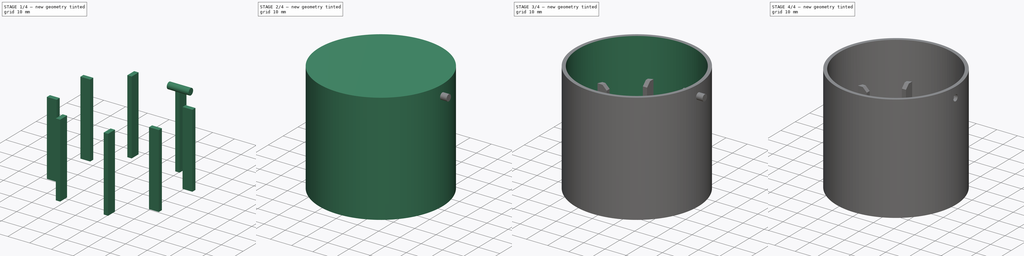
[diagram: build sequence overview — one tinted view per stage of 4, left to right]
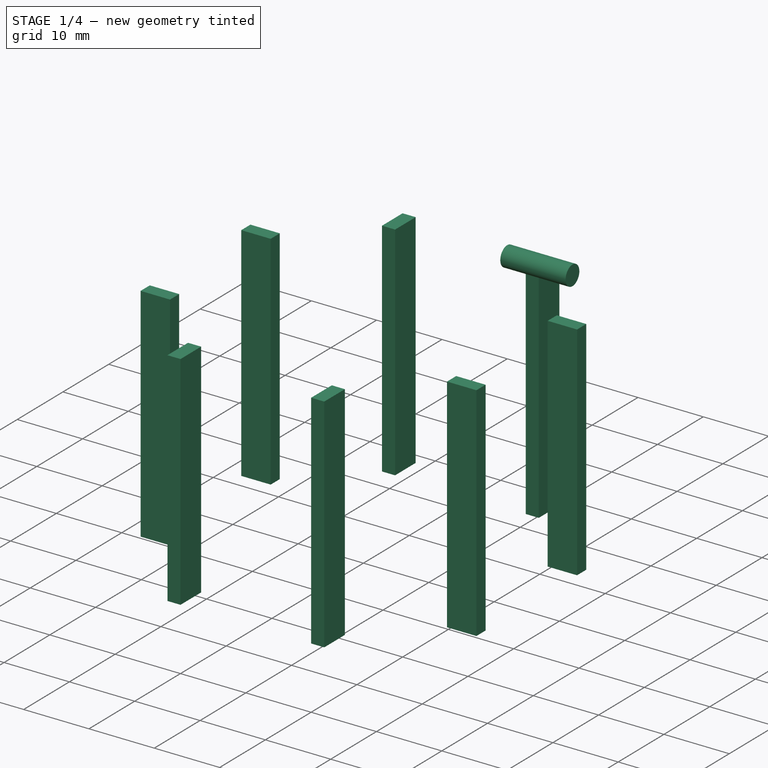
[diagram: stage 1 of 4 — iso view after this stage's code; geometry added in this stage tinted green]
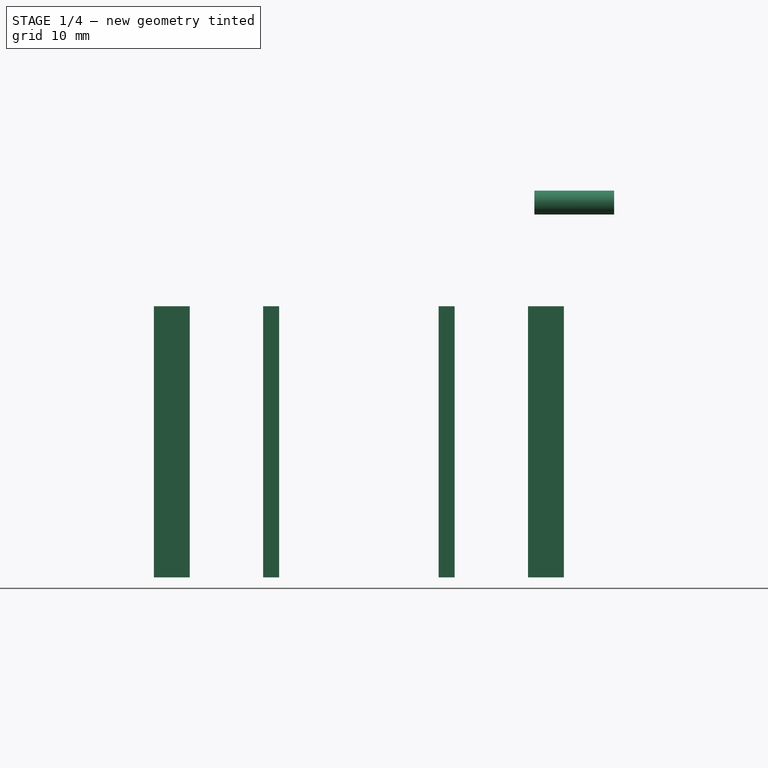
[diagram: stage 1 of 4 — front view after this stage's code; geometry added in this stage tinted green]
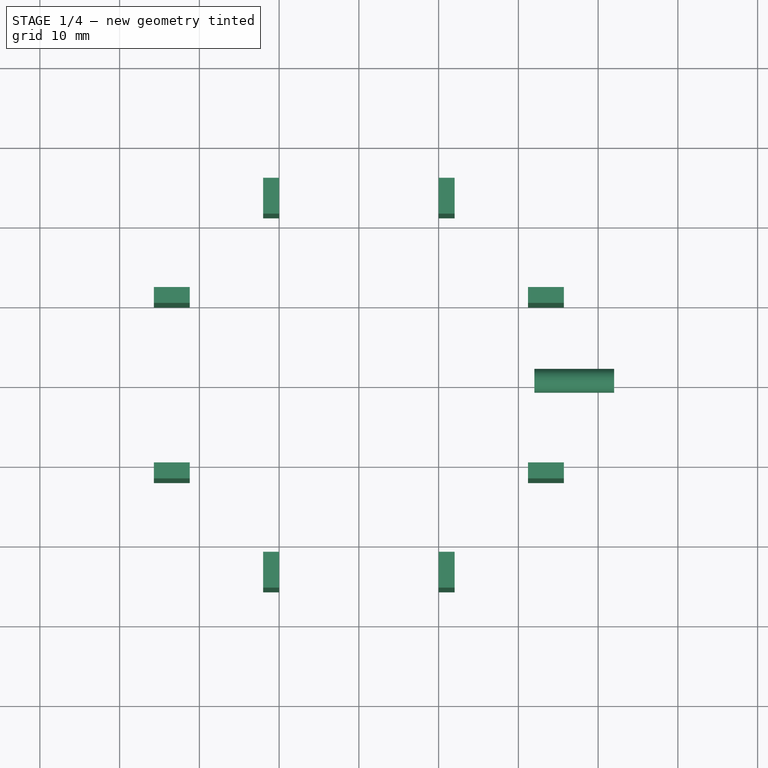
[diagram: stage 1 of 4 — top view after this stage's code; geometry added in this stage tinted green]
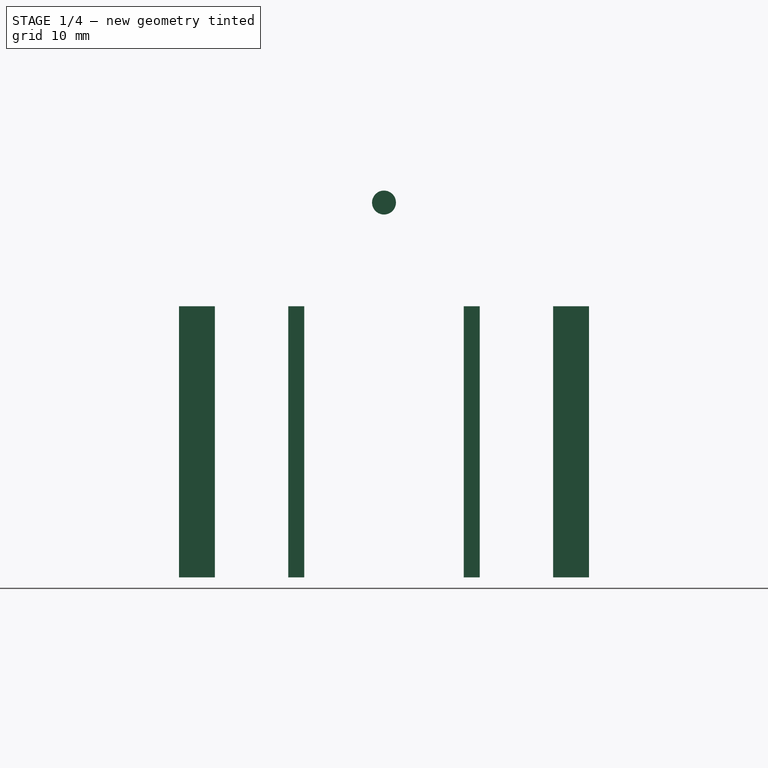
[diagram: stage 1 of 4 — right view after this stage's code; geometry added in this stage tinted green]
FCSTD DOCUMENT  (FreeCAD 0.15R4671 (Git))
Label: azimuth_enclosure
License: CreativeCommons Attribution-ShareAlike
LicenseURL: http://creativecommons.org/licenses/by-sa/4.0/
objects: Sketcher::SketchObject×3, Part::Cylinder×2, PartDesign::Pocket×2, PartDesign::Chamfer×2, PartDesign::Pad×1, Part::MultiFuse×1, Part::Cut×1
note: 15 computed .brp shape members not serialized (recipe doc carries the construction recipe); baked Part::Feature solids carry a one-line shape summary decoded from their .brp

FEATURE [Sketcher::SketchObject] Sketch002
  sketch-geometry (36):
    g0: LineSegment StartX=-12 StartY=25.7 StartZ=0 EndX=-10 EndY=25.7 EndZ=0
    g1: LineSegment StartX=-10 StartY=25.7 StartZ=0 EndX=-10 EndY=21.2 EndZ=0
    g2: LineSegment StartX=-10 StartY=21.2 StartZ=0 EndX=-12 EndY=21.2 EndZ=0
    g3: LineSegment StartX=-12 StartY=21.2 StartZ=0 EndX=-12 EndY=25.7 EndZ=0
    g4: LineSegment StartX=10 StartY=25.7 StartZ=0 EndX=12 EndY=25.7 EndZ=0
    g5: LineSegment StartX=12 StartY=25.7 StartZ=0 EndX=12 EndY=21.2 EndZ=0
    g6: LineSegment StartX=12 StartY=21.2 StartZ=0 EndX=10 EndY=21.2 EndZ=0
    g7: LineSegment StartX=10 StartY=21.2 StartZ=0 EndX=10 EndY=25.7 EndZ=0
    g8: LineSegment StartX=-12 StartY=-21.2 StartZ=0 EndX=-10 EndY=-21.2 EndZ=0
    g9: LineSegment StartX=-10 StartY=-21.2 StartZ=0 EndX=-10 EndY=-25.7 EndZ=0
    g10: LineSegment StartX=-10 StartY=-25.7 StartZ=0 EndX=-12 EndY=-25.7 EndZ=0
    g11: LineSegment StartX=-12 StartY=-25.7 StartZ=0 EndX=-12 EndY=-21.2 EndZ=0
    g12: LineSegment StartX=10 StartY=-21.2 StartZ=0 EndX=12 EndY=-21.2 EndZ=0
    g13: LineSegment StartX=12 StartY=-21.2 StartZ=0 EndX=12 EndY=-25.7 EndZ=0
    g14: LineSegment StartX=12 StartY=-25.7 StartZ=0 EndX=10 EndY=-25.7 EndZ=0
    g15: LineSegment StartX=10 StartY=-25.7 StartZ=0 EndX=10 EndY=-21.2 EndZ=0
    g16: LineSegment StartX=21.2 StartY=12 StartZ=0 EndX=25.7 EndY=12 EndZ=0
    g17: LineSegment StartX=25.7 StartY=12 StartZ=0 EndX=25.7 EndY=10 EndZ=0
    g18: LineSegment StartX=25.7 StartY=10 StartZ=0 EndX=21.2 EndY=10 EndZ=0
    g19: LineSegment StartX=21.2 StartY=10 StartZ=0 EndX=21.2 EndY=12 EndZ=0
    g20: LineSegment StartX=21.2 StartY=-10 StartZ=0 EndX=25.7 EndY=-10 EndZ=0
    g21: LineSegment StartX=25.7 StartY=-10 StartZ=0 EndX=25.7 EndY=-12 EndZ=0
    g22: LineSegment StartX=25.7 StartY=-12 StartZ=0 EndX=21.2 EndY=-12 EndZ=0
    g23: LineSegment StartX=21.2 StartY=-12 StartZ=0 EndX=21.2 EndY=-10 EndZ=0
    g24: LineSegment StartX=-25.7 StartY=12 StartZ=0 EndX=-21.2 EndY=12 EndZ=0
    g25: LineSegment StartX=-21.2 StartY=12 StartZ=0 EndX=-21.2 EndY=10 EndZ=0
    g26: LineSegment StartX=-21.2 StartY=10 StartZ=0 EndX=-25.7 EndY=10 EndZ=0
    g27: LineSegment StartX=-25.7 StartY=10 StartZ=0 EndX=-25.7 EndY=12 EndZ=0
    g28: LineSegment StartX=-25.7 StartY=-10 StartZ=0 EndX=-21.2 EndY=-10 EndZ=0
    g29: LineSegment StartX=-21.2 StartY=-10 StartZ=0 EndX=-21.2 EndY=-12 EndZ=0
    g30: LineSegment StartX=-21.2 StartY=-12 StartZ=0 EndX=-25.7 EndY=-12 EndZ=0
    g31: LineSegment StartX=-25.7 StartY=-12 StartZ=0 EndX=-25.7 EndY=-10 EndZ=0
    g32: LineSegment [constr] StartX=-10 StartY=21.2 StartZ=0 EndX=10 EndY=21.2 EndZ=0
    g33: LineSegment [constr] StartX=-21.2 StartY=10 StartZ=0 EndX=-21.2 EndY=-10 EndZ=0
    g34: LineSegment [constr] StartX=-10 StartY=21.2 StartZ=0 EndX=-10 EndY=-21.2 EndZ=0
    g35: LineSegment [constr] StartX=-21.2 StartY=10 StartZ=0 EndX=21.2 EndY=10 EndZ=0
  constraints (99):
    c: Coincident(g0,g1)
    c: Coincident(g1,g2)
    c: Coincident(g2,g3)
    c: Coincident(g3,g0)
    c: Horizontal(g0)
    c: Horizontal(g2)
    c: Vertical(g1)
    c: Vertical(g3)
    c: DistanceX(g2,g1) = 2
    c: DistanceY(g0,g2) = -4.5
    c: DistanceX(g-1,g0) = -10
    c: DistanceY(g-1,g1) = 21.2
    c: Coincident(g4,g5)
    c: Coincident(g5,g6)
    c: Coincident(g6,g7)
    c: Coincident(g7,g4)
    c: Horizontal(g4)
    c: Horizontal(g6)
    c: Vertical(g5)
    c: Vertical(g7)
    c: Coincident(g8,g9)
    c: Coincident(g9,g10)
    c: Coincident(g10,g11)
    c: Coincident(g11,g8)
    c: Horizontal(g8)
    c: Horizontal(g10)
    c: Vertical(g9)
    c: Vertical(g11)
    c: Coincident(g12,g13)
    c: Coincident(g13,g14)
    c: Coincident(g14,g15)
    c: Coincident(g15,g12)
    c: Horizontal(g12)
    c: Horizontal(g14)
    c: Vertical(g13)
    c: Vertical(g15)
    c: Coincident(g16,g17)
    c: Coincident(g17,g18)
    c: Coincident(g18,g19)
    c: Coincident(g19,g16)
    c: Horizontal(g16)
    c: Horizontal(g18)
    c: Vertical(g17)
    c: Vertical(g19)
    c: Coincident(g20,g21)
    c: Coincident(g21,g22)
    c: Coincident(g22,g23)
    c: Coincident(g23,g20)
    c: Horizontal(g20)
    c: Horizontal(g22)
    c: Vertical(g21)
    c: Vertical(g23)
    c: Coincident(g24,g25)
    c: Coincident(g25,g26)
    c: Coincident(g26,g27)
    c: Coincident(g27,g24)
    c: Horizontal(g24)
    c: Horizontal(g26)
    c: Vertical(g25)
    c: Vertical(g27)
    c: Coincident(g28,g29)
    c: Coincident(g29,g30)
    c: Coincident(g30,g31)
    c: Coincident(g31,g28)
    c: Horizontal(g28)
    c: Horizontal(g30)
    c: Vertical(g29)
    c: Vertical(g31)
    c: Equal(g24,g28)
    c: Equal(g28,g11)
    c: Equal(g11,g15)
    c: Equal(g15,g22)
    c: Equal(g22,g18)
    c: Equal(g18,g5)
    c: Equal(g5,g1)
    c: Equal(g25,g29)
    c: Equal(g29,g8)
    c: Equal(g8,g12)
    c: Equal(g12,g23)
    c: Equal(g23,g19)
    c: Equal(g19,g6)
    c: Equal(g2,g6)
    c: Symmetric(g6,g1,g-2)
    c: Symmetric(g18,g25,g-2)
    c: Symmetric(g8,g12,g-2)
    c: Symmetric(g1,g8,g-1)
    c: Symmetric(g25,g28,g-1)
    c: Symmetric(g28,g20,g-2)
    c: Coincident(g32,g6)
    c: Horizontal(g32)
    c: Coincident(g33,g25)
    c: Coincident(g33,g28)
    c: Equal(g33,g32)
    c: Coincident(g1,g32)
    c: Coincident(g34,g1)
    c: Coincident(g34,g8)
    c: Coincident(g35,g25)
    c: Coincident(g35,g18)
    c: Equal(g35,g34)
FEATURE [PartDesign::Pad] Pad
  Length = 34
  Length2 = 100
  Sketch = -> Sketch002
  Type = 0
FEATURE [Part::Cylinder] Cylinder001
  Angle = 360
  Height = 10
  Placement = pos=(22,0,47) rot=(0,1,0;1.5708rad)
  Radius = 1.5
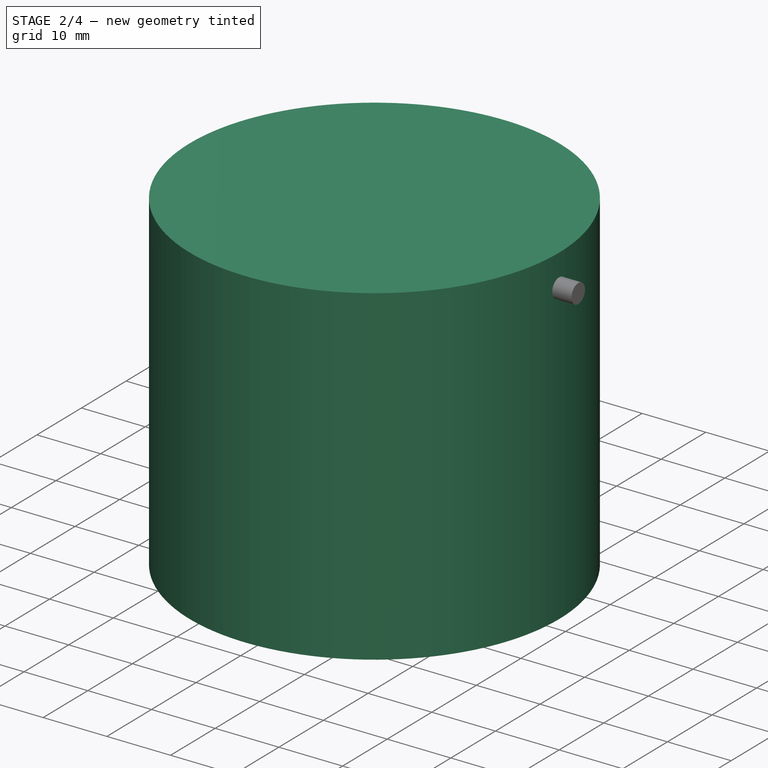
[diagram: stage 2 of 4 — iso view after this stage's code; geometry added in this stage tinted green]
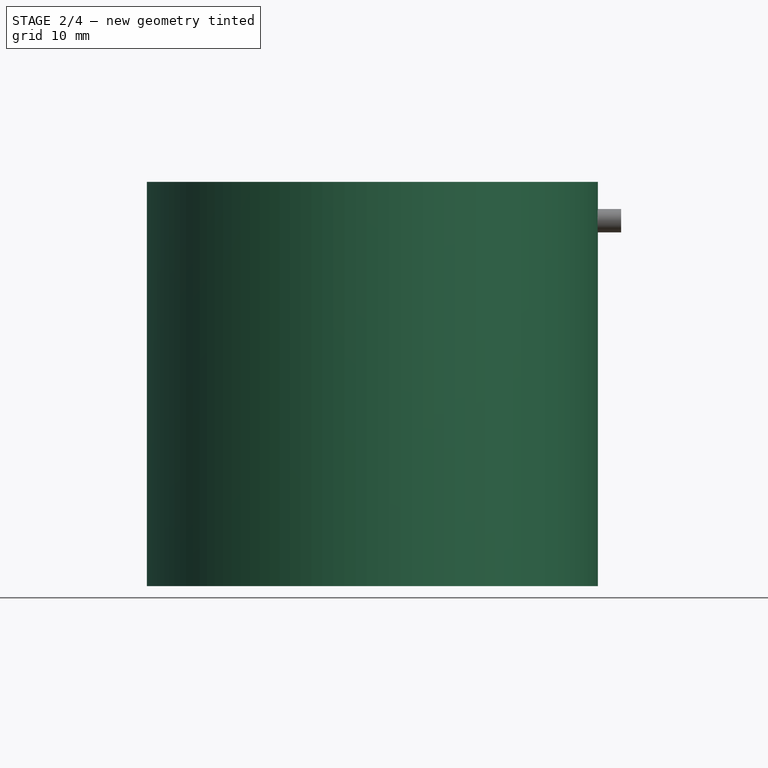
[diagram: stage 2 of 4 — front view after this stage's code; geometry added in this stage tinted green]
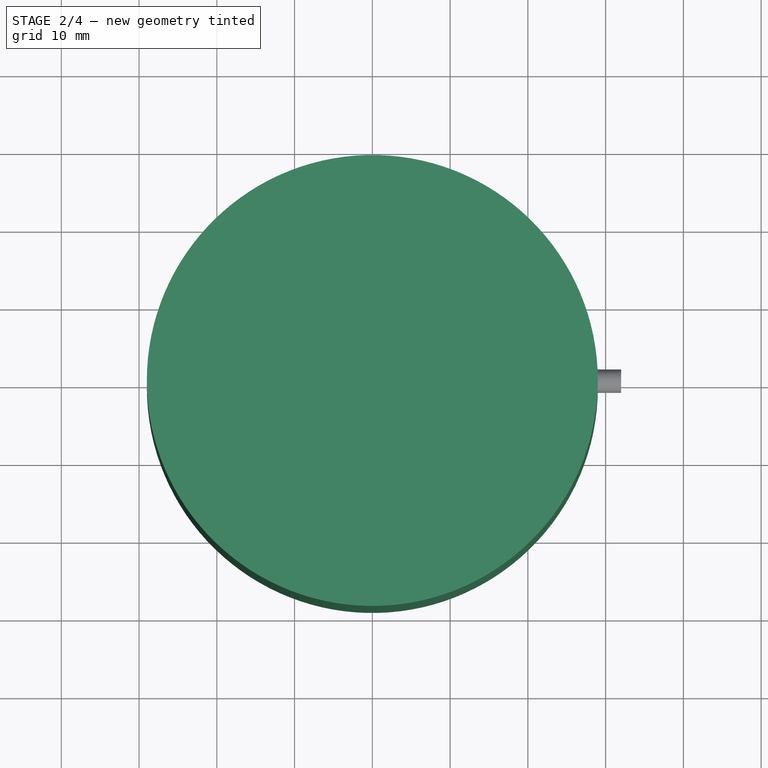
[diagram: stage 2 of 4 — top view after this stage's code; geometry added in this stage tinted green]
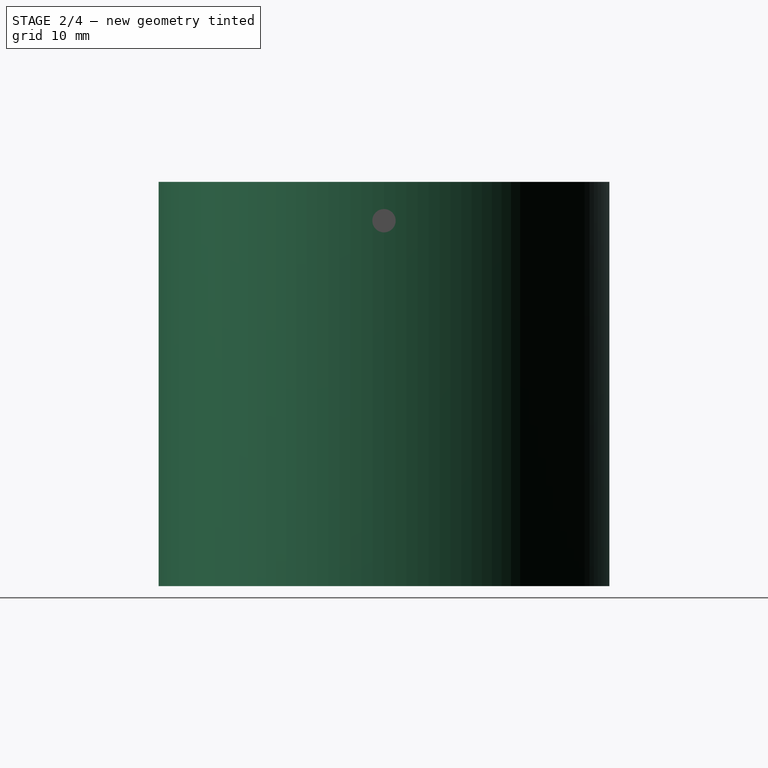
[diagram: stage 2 of 4 — right view after this stage's code; geometry added in this stage tinted green]
FEATURE [Part::Cylinder] Cylinder
  Angle = 360
  Height = 52
  Radius = 29
FEATURE [PartDesign::Chamfer] Chamfer001
  Base = -> Pad [Edge7,Edge64,Edge52,Edge36,Edge48,Edge82,Edge94,Edge19]
  Size = 2
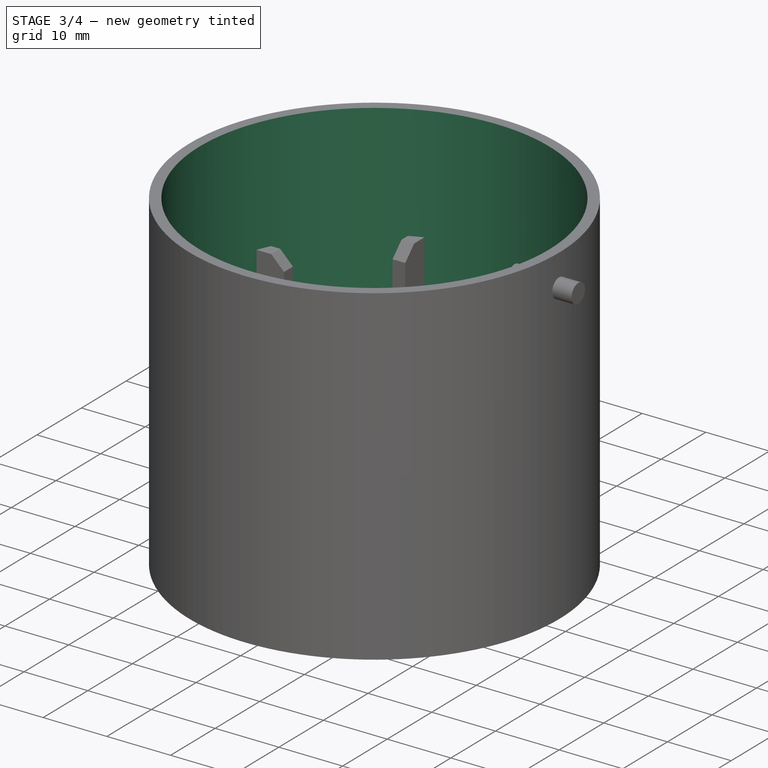
[diagram: stage 3 of 4 — iso view after this stage's code; geometry added in this stage tinted green]
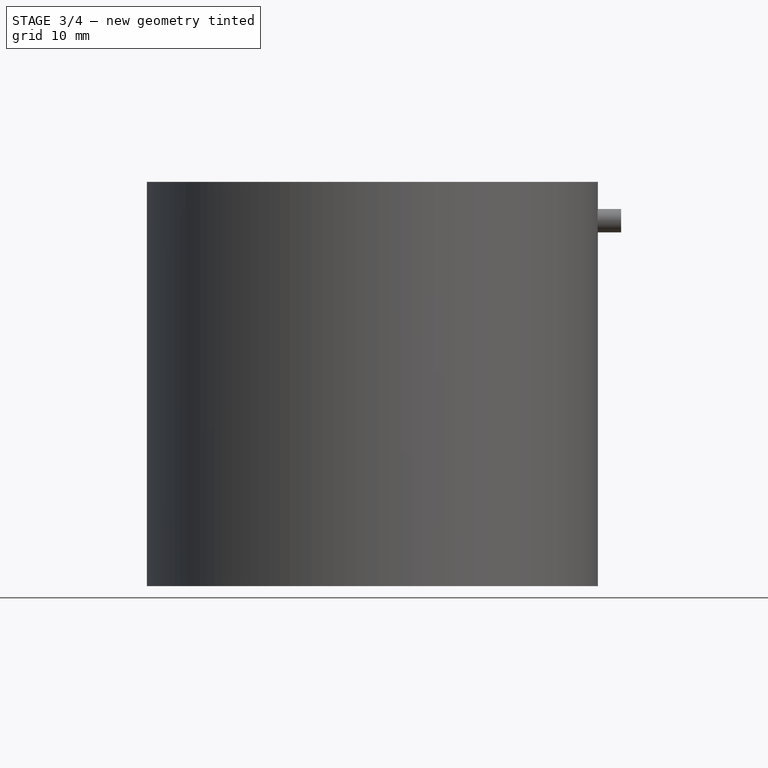
[diagram: stage 3 of 4 — front view after this stage's code; geometry added in this stage tinted green]
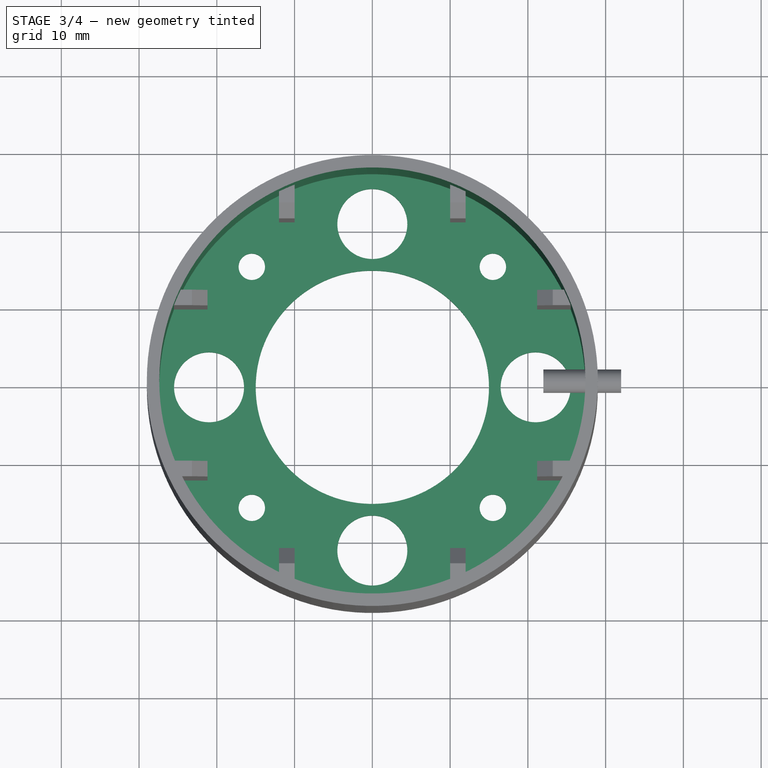
[diagram: stage 3 of 4 — top view after this stage's code; geometry added in this stage tinted green]
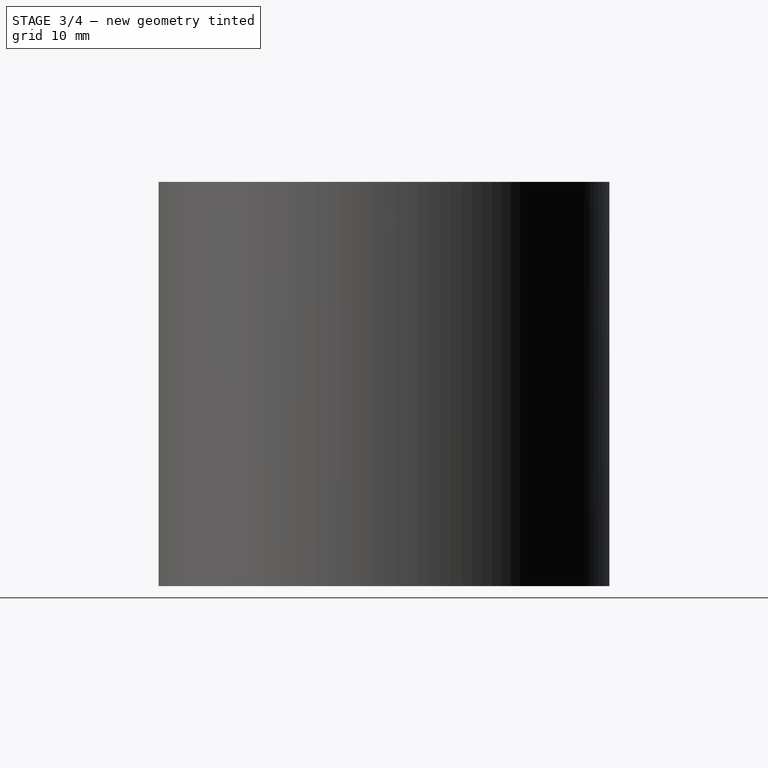
[diagram: stage 3 of 4 — right view after this stage's code; geometry added in this stage tinted green]
FEATURE [Sketcher::SketchObject] Sketch
  Placement = pos=(0,0,52) rot=(0,0,1;0rad)
  Support = -> Cylinder [Face2]
  sketch-geometry (1):
    g0: Circle CenterX=0 CenterY=0 CenterZ=0 NormalX=0 NormalY=0 NormalZ=1 Radius=27.4
  constraints (2):
    c: Coincident(g0,g-1)
    c: Radius(g0) = 27.4
FEATURE [PartDesign::Pocket] Pocket
  Length = 50
  Sketch = -> Sketch
  Type = 0
FEATURE [Sketcher::SketchObject] Sketch001
  Placement = pos=(0,0,2) rot=(0,0,1;0rad)
  Support = -> Pocket [Face5]
  sketch-geometry (13):
    g0: LineSegment [constr] StartX=-15.5 StartY=15.5 StartZ=0 EndX=15.5 EndY=15.5 EndZ=0
    g1: LineSegment [constr] StartX=-15.5 StartY=-15.5 StartZ=0 EndX=-15.5 EndY=15.5 EndZ=0
    g2: Circle CenterX=-15.5 CenterY=15.5 CenterZ=0 NormalX=0 NormalY=0 NormalZ=1 Radius=1.7
    g3: Circle CenterX=15.5 CenterY=15.5 CenterZ=0 NormalX=0 NormalY=0 NormalZ=1 Radius=1.7
    g4: Circle CenterX=-15.5 CenterY=-15.5 CenterZ=0 NormalX=0 NormalY=0 NormalZ=1 Radius=1.7
    g5: Circle CenterX=15.5 CenterY=-15.5 CenterZ=0 NormalX=0 NormalY=0 NormalZ=1 Radius=1.7
    g6: Circle CenterX=0 CenterY=0 CenterZ=0 NormalX=0 NormalY=0 NormalZ=1 Radius=15
    g7: Circle CenterX=-21 CenterY=0 CenterZ=0 NormalX=0 NormalY=0 NormalZ=1 Radius=4.5
    g8: Circle CenterX=21 CenterY=0 CenterZ=0 NormalX=0 NormalY=0 NormalZ=1 Radius=4.5
    g9: Circle CenterX=0 CenterY=21 CenterZ=0 NormalX=0 NormalY=0 NormalZ=1 Radius=4.5
    g10: Circle CenterX=0 CenterY=-21 CenterZ=0 NormalX=0 NormalY=0 NormalZ=1 Radius=4.5
    g11: LineSegment [constr] StartX=0 StartY=21 StartZ=0 EndX=0 EndY=0 EndZ=0
    g12: LineSegment [constr] StartX=0 StartY=0 StartZ=0 EndX=21 EndY=0 EndZ=0
  constraints (32):
    c: Coincident(g1,g0)
    c: Horizontal(g0)
    c: Vertical(g1)
    c: Symmetric(g0,g1,g-1)
    c: Symmetric(g0,g0,g-2)
    c: Equal(g0,g1)
    c: DistanceY(g0,g1) = -31
    c: Coincident(g2,g0)
    c: Equal(g5,g4)
    c: Equal(g4,g2)
    c: Equal(g2,g3)
    c: Radius(g2) = 1.7
    c: Coincident(g3,g0)
    c: Coincident(g1,g4)
    c: Symmetric(g5,g1,g-2)
    c: Coincident(g6,g-1)
    c: Radius(g6) = 15
    c: PointOnObject(g8,g-1)
    c: PointOnObject(g7,g-1)
    c: Symmetric(g7,g8,g-2)
    c: Equal(g8,g7)
    c: Radius(g8) = 4.5
    c: DistanceX(g-1,g8) = 21
    c: Equal(g9,g8)
    c: Equal(g8,g10)
    c: PointOnObject(g10,g-2)
    c: Symmetric(g9,g10,g-1)
    c: Coincident(g11,g9)
    c: Coincident(g11,g-1)
    c: Coincident(g12,g-1)
    c: Coincident(g12,g8)
    c: Equal(g11,g12)
FEATURE [PartDesign::Pocket] Pocket001
  Length = 5
  Sketch = -> Sketch001
  Type = 1
FEATURE [Part::MultiFuse] Fusion
  Shapes = -> [Pocket001,Chamfer001]
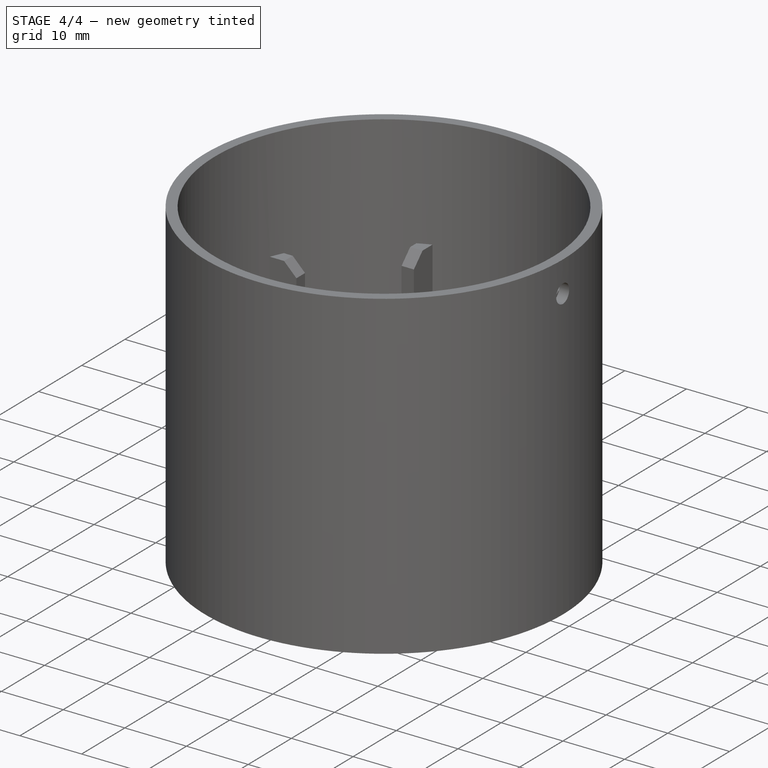
[diagram: stage 4 of 4 — iso view after this stage's code; geometry added in this stage tinted green]
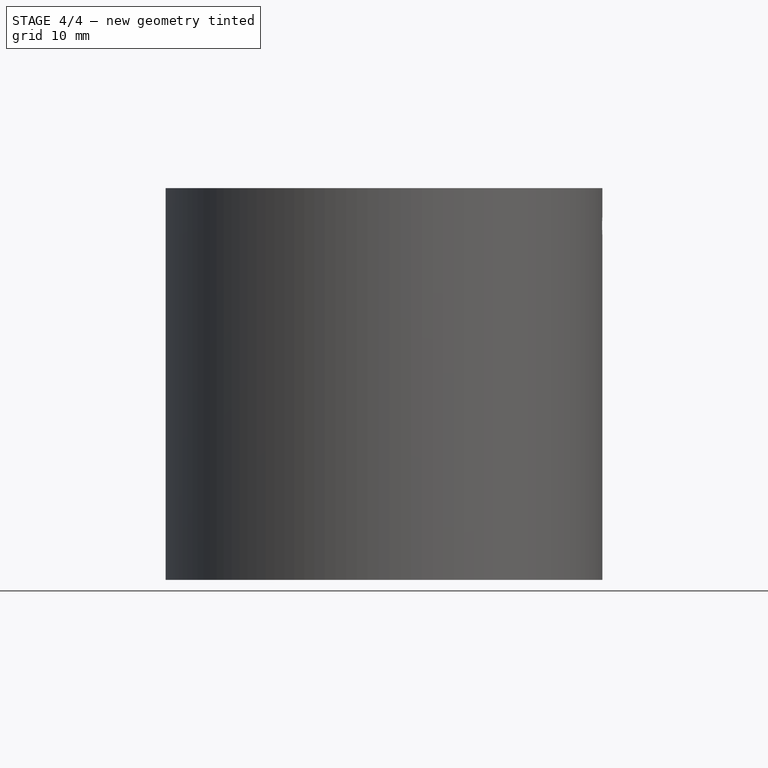
[diagram: stage 4 of 4 — front view after this stage's code; geometry added in this stage tinted green]
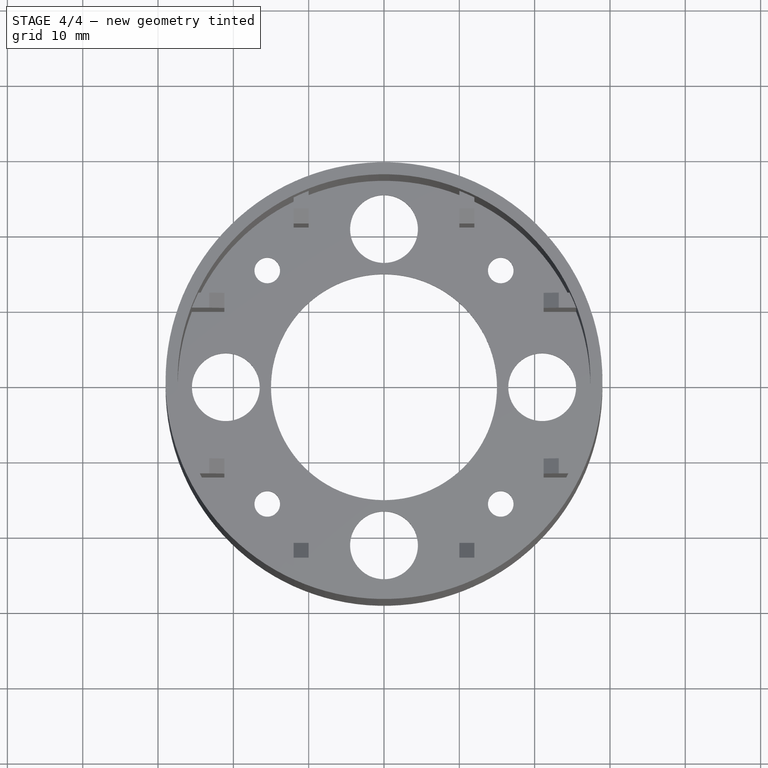
[diagram: stage 4 of 4 — top view after this stage's code; geometry added in this stage tinted green]
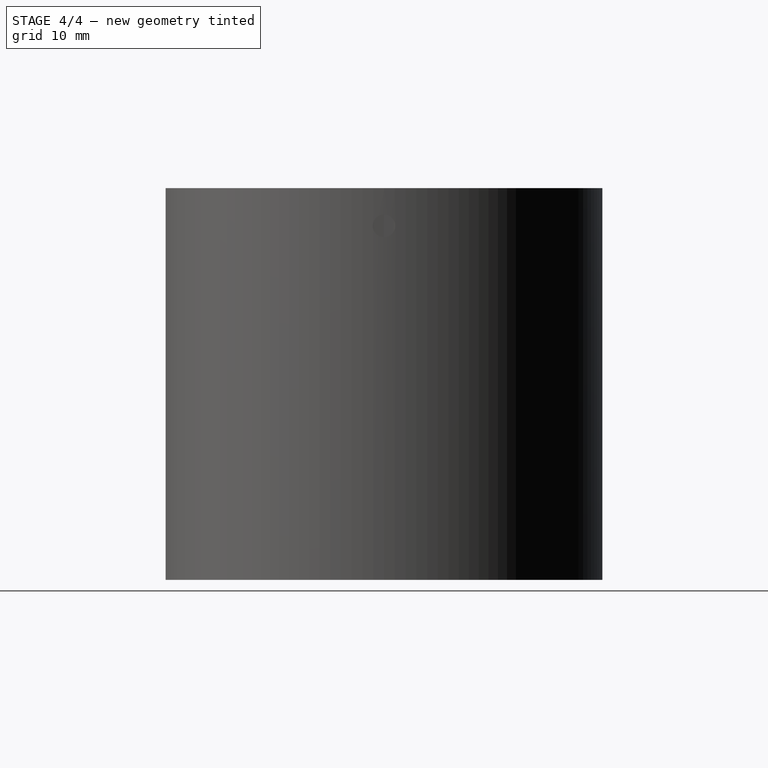
[diagram: stage 4 of 4 — right view after this stage's code; geometry added in this stage tinted green]
FEATURE [PartDesign::Chamfer] Chamfer
  Base = -> Pad [Edge7,Edge64,Edge52,Edge36,Edge48,Edge82,Edge94,Edge19]
  Size = 2
FEATURE [Part::Cut] Cut
  Base = -> Fusion
  Tool = -> Cylinder001
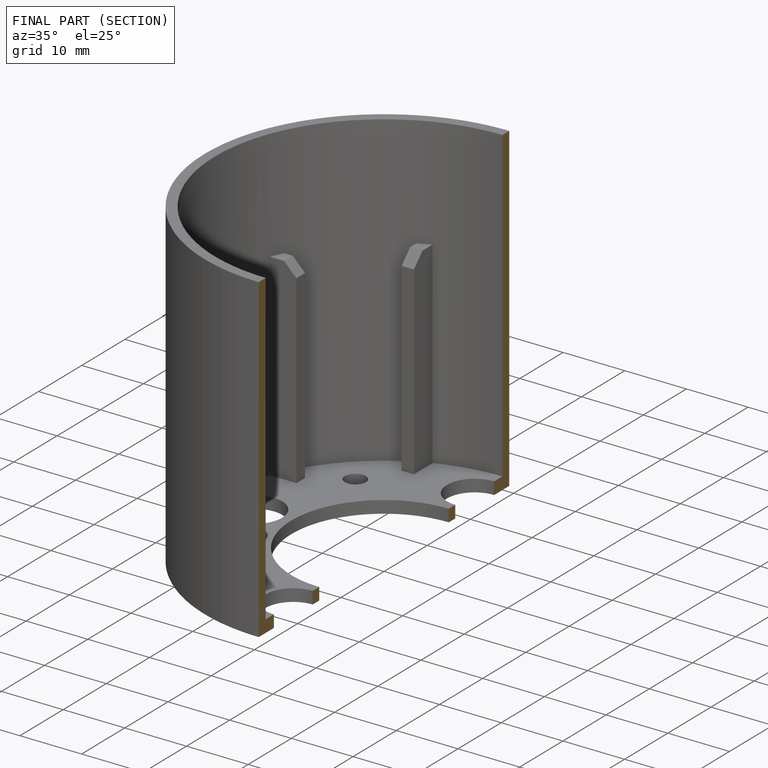
[diagram: finished part — half-section view (interior)]
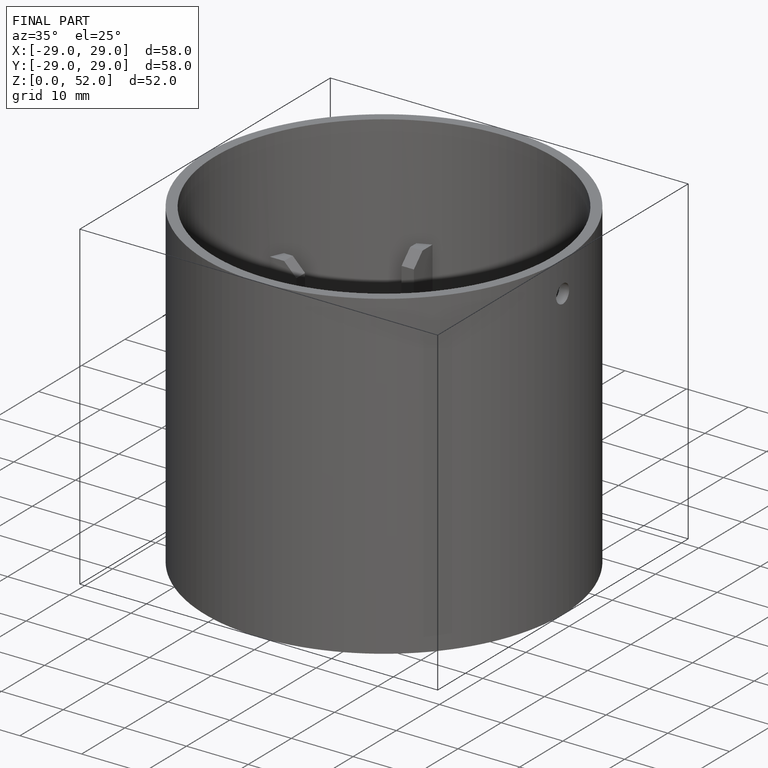
[diagram: finished part — iso view with bounding-box wireframe]
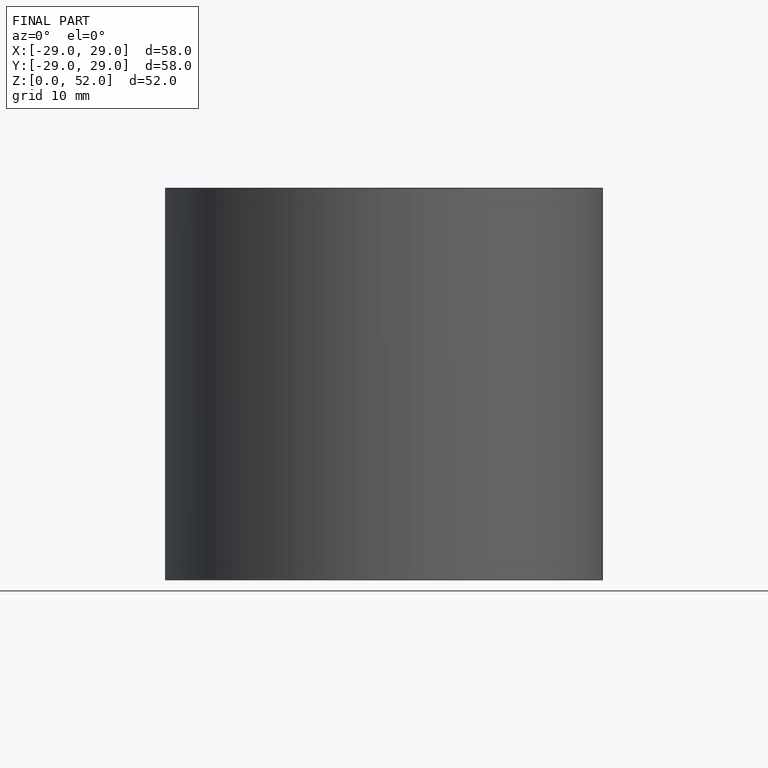
[diagram: finished part — front view with bounding-box wireframe]
